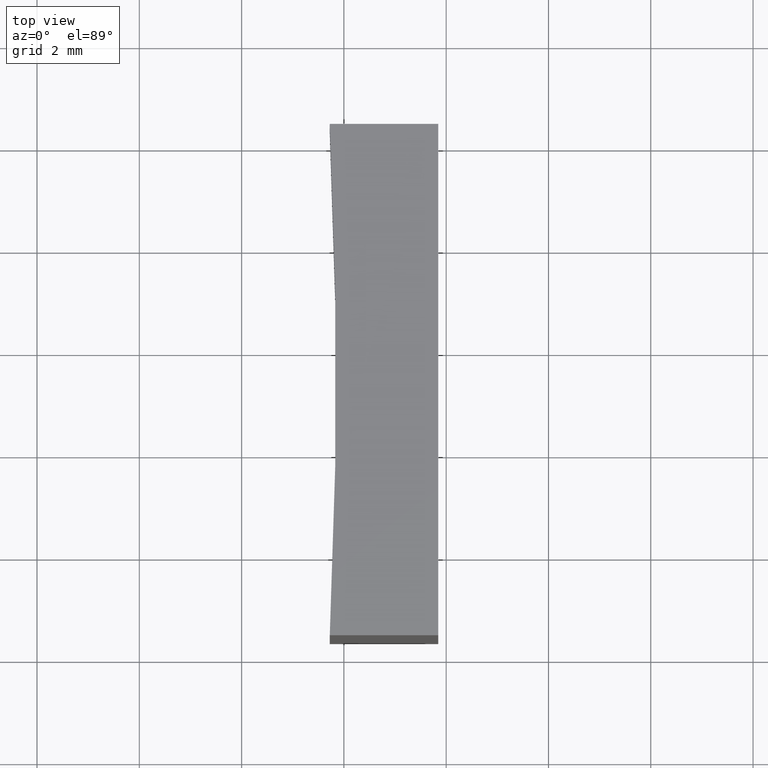
[diagram: clean part render]
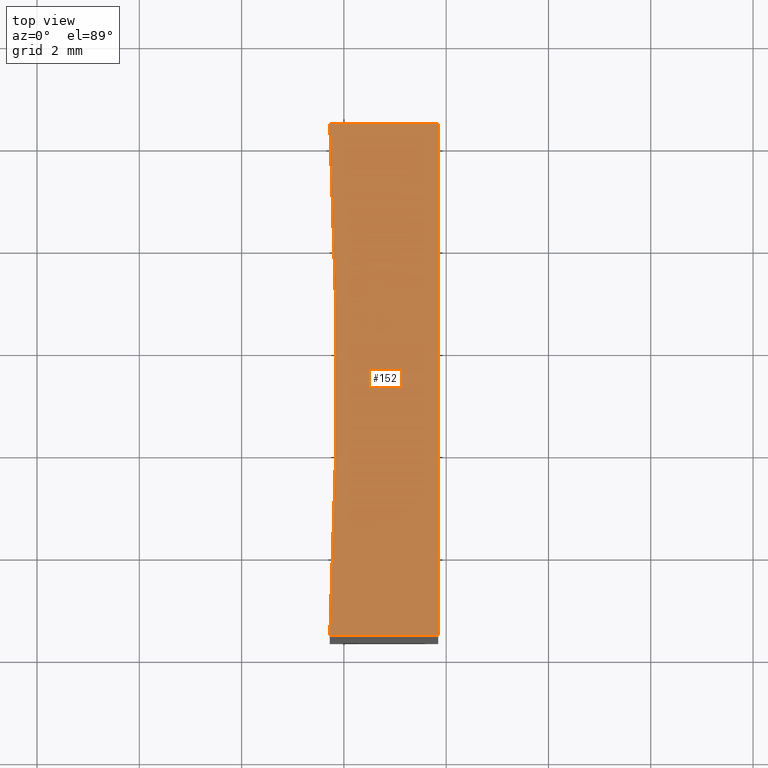
[diagram: same view with one face highlighted and labeled with its STEP entity id]
A machine part, top view. The second image highlights one B-rep face of the part: STEP entity #152.
In plain terms, the highlighted planar face has unit normal (0, 0, 1).
Its self-contained STEP definition (entity closure, byte-faithful):
#6 = DIRECTION ( 'NONE',  ( -1.000000000000000000, -0.000000000000000000, -0.000000000000000000 ) ) ;
#22 = CARTESIAN_POINT ( 'NONE',  ( 57.72424807826814686, 18.35260716345252519, 10.00000000000000000 ) ) ;
#24 = CARTESIAN_POINT ( 'NONE',  ( 57.72424807826814686, 18.35260716345252519, 10.00000000000000000 ) ) ;
#26 = LINE ( 'NONE', #137, #87 ) ;
#29 = EDGE_CURVE ( 'NONE', #210, #184, #26, .T. ) ;
#38 = DIRECTION ( 'NONE',  ( -0.000000000000000000, 1.000000000000000000, -0.000000000000000000 ) ) ;
#39 = DIRECTION ( 'NONE',  ( 1.000000000000000000, 0.000000000000000000, -0.000000000000000000 ) ) ;
#42 = CIRCLE ( 'NONE', #53, 103.4000000000000057 ) ;
#45 = CARTESIAN_POINT ( 'NONE',  ( -45.55479142152581318, 13.35260716345252341, 10.00000000000000000 ) ) ;
#53 = AXIS2_PLACEMENT_3D ( 'NONE', #155, #95, #176 ) ;
#56 = CARTESIAN_POINT ( 'NONE',  ( 59.84424807826814430, 18.35260716345252519, 10.00000000000000000 ) ) ;
#61 = ORIENTED_EDGE ( 'NONE', *, *, #187, .T. ) ;
#65 = EDGE_LOOP ( 'NONE', ( #104, #214, #61, #217 ) ) ;
#66 = VECTOR ( 'NONE', #6, 1000.000000000000000 ) ;
#76 = LINE ( 'NONE', #56, #201 ) ;
#87 = VECTOR ( 'NONE', #159, 1000.000000000000000 ) ;
#95 = DIRECTION ( 'NONE',  ( -0.000000000000000000, -0.000000000000000000, -1.000000000000000000 ) ) ;
#104 = ORIENTED_EDGE ( 'NONE', *, *, #172, .T. ) ;
#111 = CARTESIAN_POINT ( 'NONE',  ( 57.72424807826814686, 8.352607163452523409, 10.00000000000000000 ) ) ;
#116 = FACE_OUTER_BOUND ( 'NONE', #65, .T. ) ;
#121 = EDGE_CURVE ( 'NONE', #212, #157, #193, .T. ) ;
#128 = DIRECTION ( 'NONE',  ( 0.000000000000000000, 0.000000000000000000, 1.000000000000000000 ) ) ;
#134 = CARTESIAN_POINT ( 'NONE',  ( 59.84424807826814430, 8.352607163452523409, 10.00000000000000000 ) ) ;
#137 = CARTESIAN_POINT ( 'NONE',  ( 57.72424807826814686, 8.352607163452523409, 10.00000000000000000 ) ) ;
#140 = PLANE ( 'NONE',  #198 ) ;
#152 = ADVANCED_FACE ( 'NONE', ( #116 ), #140, .T. ) ;
#155 = CARTESIAN_POINT ( 'NONE',  ( -45.55479142152581318, 13.35260716345252341, 10.00000000000000000 ) ) ;
#157 = VERTEX_POINT ( 'NONE', #22 ) ;
#159 = DIRECTION ( 'NONE',  ( 1.000000000000000000, 0.000000000000000000, 0.000000000000000000 ) ) ;
#172 = EDGE_CURVE ( 'NONE', #157, #210, #42, .T. ) ;
#174 = CARTESIAN_POINT ( 'NONE',  ( 59.84424807826814430, 18.35260716345252519, 10.00000000000000000 ) ) ;
#176 = DIRECTION ( 'NONE',  ( 1.000000000000000000, 0.000000000000000000, 0.000000000000000000 ) ) ;
#184 = VERTEX_POINT ( 'NONE', #134 ) ;
#187 = EDGE_CURVE ( 'NONE', #184, #212, #76, .T. ) ;
#193 = LINE ( 'NONE', #24, #66 ) ;
#198 = AXIS2_PLACEMENT_3D ( 'NONE', #45, #128, #39 ) ;
#201 = VECTOR ( 'NONE', #38, 1000.000000000000000 ) ;
#210 = VERTEX_POINT ( 'NONE', #111 ) ;
#212 = VERTEX_POINT ( 'NONE', #174 ) ;
#214 = ORIENTED_EDGE ( 'NONE', *, *, #29, .T. ) ;
#217 = ORIENTED_EDGE ( 'NONE', *, *, #121, .T. ) ;